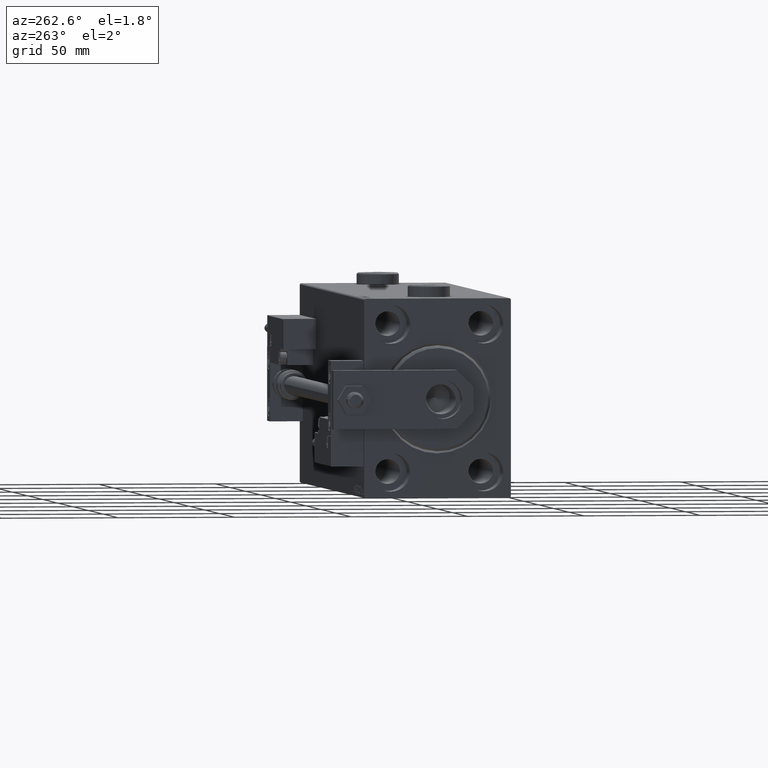
[diagram: clean part render]
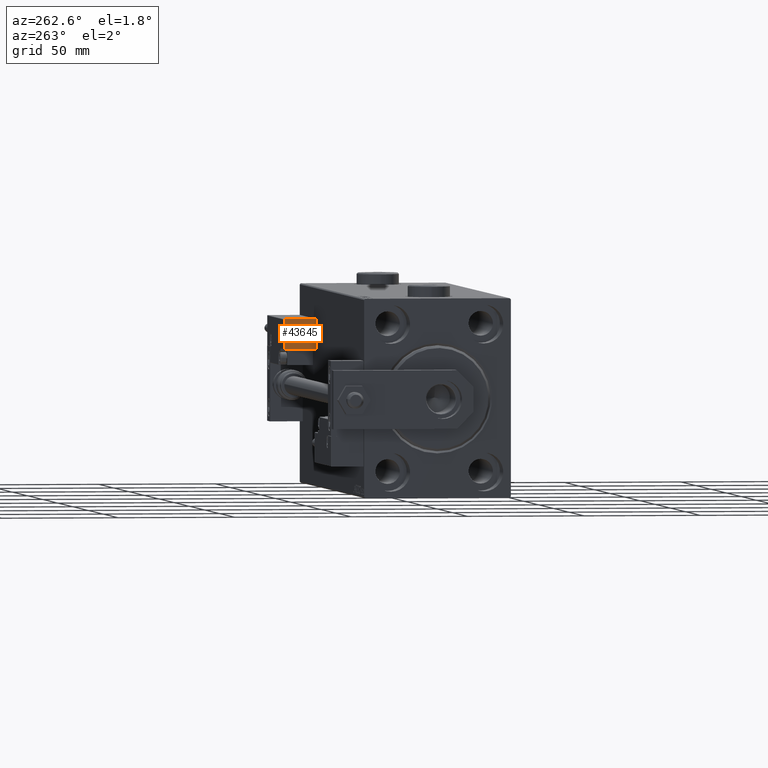
[diagram: same view with one face highlighted and labeled with its STEP entity id]
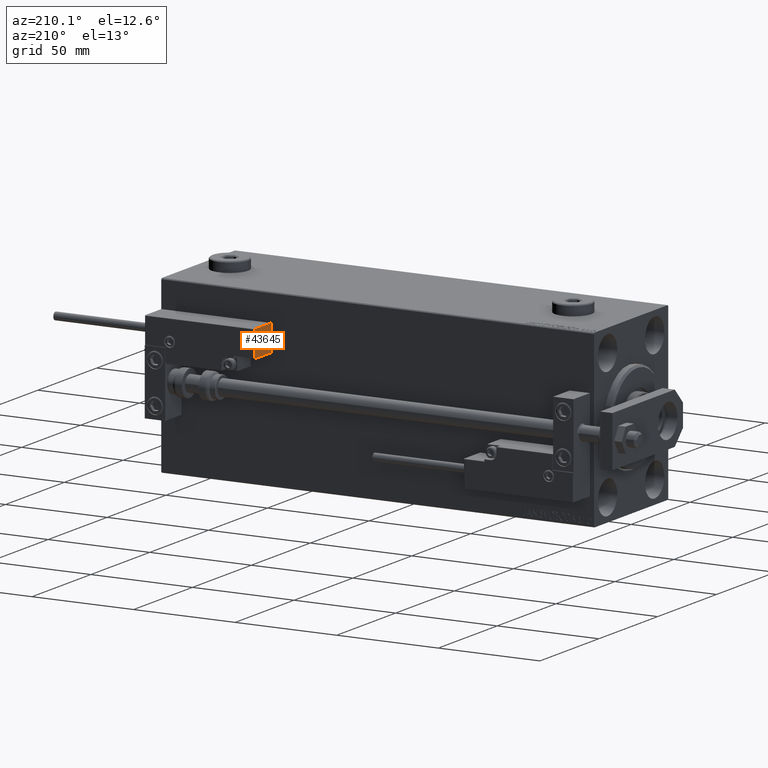
[diagram: same view with one face highlighted and labeled with its STEP entity id]
A machine part, auxiliary view. The second image highlights one B-rep face of the part: STEP entity #43645.
A second angle (auxiliary view) of the same face is appended — the face is thin or edge-on in the first view.
In plain terms, the highlighted planar face has unit normal (1, -0, -0).
Its self-contained STEP definition (entity closure, byte-faithful):
#1015 = CARTESIAN_POINT ( 'NONE',  ( 27.00000000000006395, 7.000000000000007994, 14.00000000000000000 ) ) ;
#3724 = DIRECTION ( 'NONE',  ( -0.000000000000000000, -1.000000000000000000, -0.000000000000000000 ) ) ;
#3925 = CARTESIAN_POINT ( 'NONE',  ( 27.00000000000006395, 20.00000000000001776, 0.000000000000000000 ) ) ;
#7224 = CARTESIAN_POINT ( 'NONE',  ( 27.00000000000006395, 7.000000000000007994, 0.000000000000000000 ) ) ;
#7650 = DIRECTION ( 'NONE',  ( -1.000000000000000000, 0.000000000000000000, 0.000000000000000000 ) ) ;
#7734 = DIRECTION ( 'NONE',  ( 0.000000000000000000, 1.000000000000000000, 0.000000000000000000 ) ) ;
#8085 = VERTEX_POINT ( 'NONE', #27427 ) ;
#8173 = PLANE ( 'NONE',  #38738 ) ;
#12082 = CARTESIAN_POINT ( 'NONE',  ( 27.00000000000006395, 7.000000000000007994, 14.00000000000000000 ) ) ;
#12569 = ORIENTED_EDGE ( 'NONE', *, *, #43576, .F. ) ;
#16073 = LINE ( 'NONE', #7224, #25349 ) ;
#18378 = CARTESIAN_POINT ( 'NONE',  ( 27.00000000000006395, 20.00000000000001776, 14.00000000000000000 ) ) ;
#18883 = DIRECTION ( 'NONE',  ( -0.000000000000000000, -0.000000000000000000, -1.000000000000000000 ) ) ;
#22084 = VECTOR ( 'NONE', #18883, 1000.000000000000000 ) ;
#22680 = CARTESIAN_POINT ( 'NONE',  ( 27.00000000000006395, 7.000000000000007994, 0.000000000000000000 ) ) ;
#23274 = CARTESIAN_POINT ( 'NONE',  ( 27.00000000000006395, 7.000000000000007994, 13.70000000000000107 ) ) ;
#24616 = ORIENTED_EDGE ( 'NONE', *, *, #41508, .T. ) ;
#25349 = VECTOR ( 'NONE', #7734, 1000.000000000000000 ) ;
#25719 = VERTEX_POINT ( 'NONE', #22680 ) ;
#26631 = EDGE_CURVE ( 'NONE', #8085, #33437, #27184, .T. ) ;
#27184 = LINE ( 'NONE', #23274, #46571 ) ;
#27427 = CARTESIAN_POINT ( 'NONE',  ( 27.00000000000006395, 20.00000000000001776, 13.70000000000000107 ) ) ;
#27962 = DIRECTION ( 'NONE',  ( 0.000000000000000000, 0.000000000000000000, 1.000000000000000000 ) ) ;
#28566 = VECTOR ( 'NONE', #44535, 1000.000000000000000 ) ;
#30653 = EDGE_LOOP ( 'NONE', ( #12569, #34454, #41604, #24616 ) ) ;
#33437 = VERTEX_POINT ( 'NONE', #36565 ) ;
#34454 = ORIENTED_EDGE ( 'NONE', *, *, #26631, .T. ) ;
#36565 = CARTESIAN_POINT ( 'NONE',  ( 27.00000000000006395, 7.000000000000007994, 13.70000000000000107 ) ) ;
#38023 = EDGE_CURVE ( 'NONE', #33437, #25719, #40099, .T. ) ;
#38738 = AXIS2_PLACEMENT_3D ( 'NONE', #12082, #7650, #27962 ) ;
#40099 = LINE ( 'NONE', #1015, #28566 ) ;
#41508 = EDGE_CURVE ( 'NONE', #25719, #43039, #16073, .T. ) ;
#41604 = ORIENTED_EDGE ( 'NONE', *, *, #38023, .T. ) ;
#43039 = VERTEX_POINT ( 'NONE', #3925 ) ;
#43576 = EDGE_CURVE ( 'NONE', #8085, #43039, #46488, .T. ) ;
#43645 = ADVANCED_FACE ( 'NONE', ( #47506 ), #8173, .F. ) ;
#44535 = DIRECTION ( 'NONE',  ( -0.000000000000000000, -0.000000000000000000, -1.000000000000000000 ) ) ;
#46488 = LINE ( 'NONE', #18378, #22084 ) ;
#46571 = VECTOR ( 'NONE', #3724, 1000.000000000000000 ) ;
#47506 = FACE_OUTER_BOUND ( 'NONE', #30653, .T. ) ;